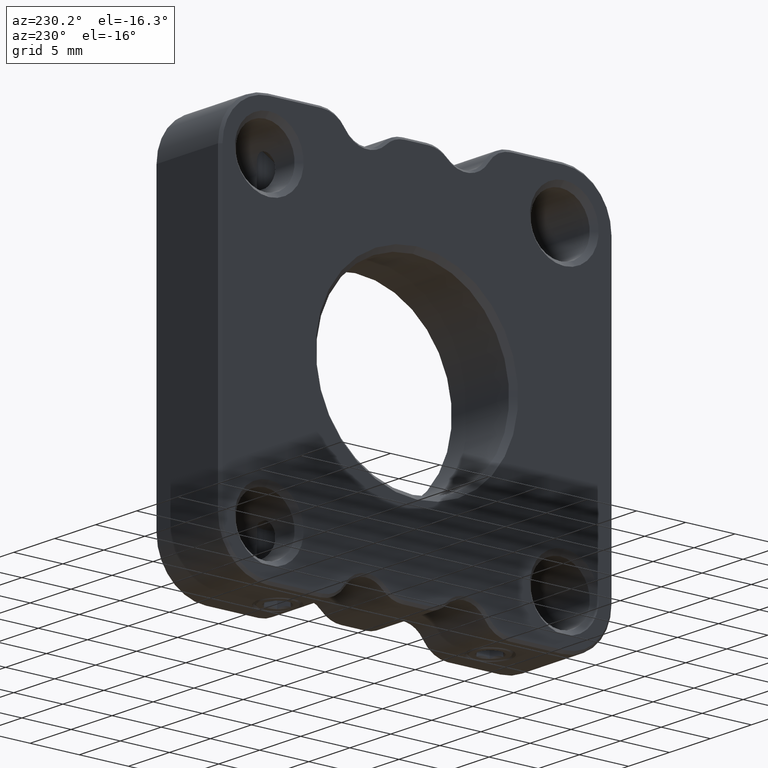
[diagram: clean part render]
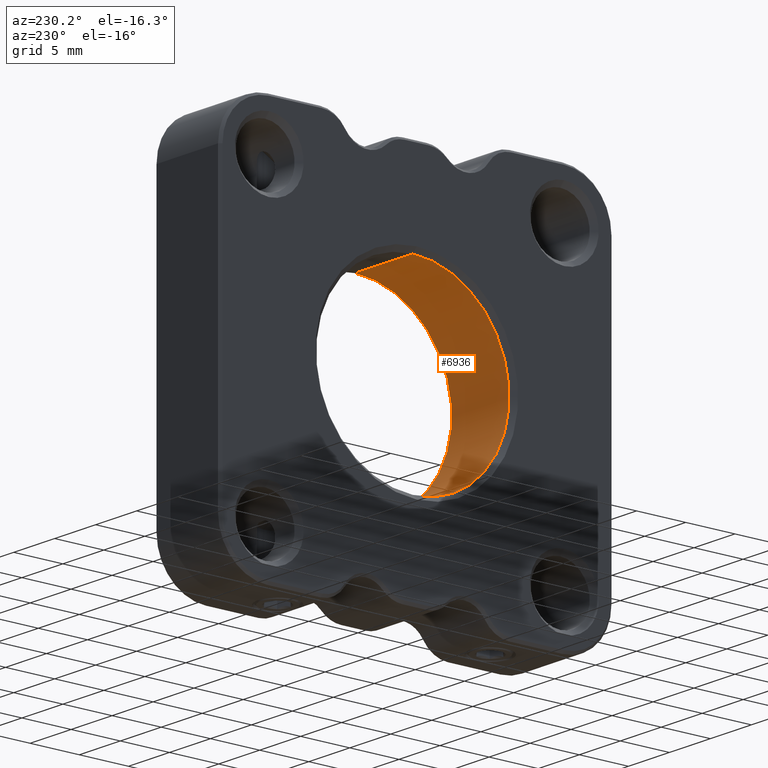
[diagram: same view with one face highlighted and labeled with its STEP entity id]
A machine part, auxiliary view. The second image highlights one B-rep face of the part: STEP entity #6936.
In plain terms, the highlighted cylindrical surface (partial cylindrical patch) has radius 9.807 mm, axis along (1, -0, -0).
Its self-contained STEP definition (entity closure, byte-faithful):
#32 = DIRECTION ( 'NONE',  ( 1.000000000000000000, -0.000000000000000000, -0.000000000000000000 ) ) ;
#97 = ORIENTED_EDGE ( 'NONE', *, *, #9271, .T. ) ;
#276 = VERTEX_POINT ( 'NONE', #6080 ) ;
#560 = EDGE_CURVE ( 'NONE', #4249, #8040, #7919, .T. ) ;
#1011 = EDGE_CURVE ( 'NONE', #276, #3826, #4308, .T. ) ;
#1663 = ORIENTED_EDGE ( 'NONE', *, *, #1753, .F. ) ;
#1753 = EDGE_CURVE ( 'NONE', #276, #8040, #3695, .T. ) ;
#2002 = ORIENTED_EDGE ( 'NONE', *, *, #1011, .T. ) ;
#2041 = EDGE_LOOP ( 'NONE', ( #2002, #97, #3394, #1663 ) ) ;
#2117 = CARTESIAN_POINT ( 'NONE',  ( -18.20960063692994524, 2.109301223409109749, 40.00000000000001421 ) ) ;
#2460 = CARTESIAN_POINT ( 'NONE',  ( -11.20960063692995412, 2.109301223409111081, 49.80700000000001637 ) ) ;
#2782 = CARTESIAN_POINT ( 'NONE',  ( -18.20960063692994524, 2.109301223409109749, 49.80700000000001637 ) ) ;
#2819 = DIRECTION ( 'NONE',  ( -1.000000000000000000, -0.000000000000000000, -0.000000000000000000 ) ) ;
#2999 = CARTESIAN_POINT ( 'NONE',  ( -11.20960063692995412, 2.109301223409109749, 40.00000000000001421 ) ) ;
#3097 = AXIS2_PLACEMENT_3D ( 'NONE', #4986, #32, #7240 ) ;
#3394 = ORIENTED_EDGE ( 'NONE', *, *, #560, .T. ) ;
#3426 = DIRECTION ( 'NONE',  ( 1.000000000000000000, -0.000000000000000000, -0.000000000000000000 ) ) ;
#3695 = LINE ( 'NONE', #6261, #4345 ) ;
#3730 = FACE_OUTER_BOUND ( 'NONE', #2041, .T. ) ;
#3826 = VERTEX_POINT ( 'NONE', #2782 ) ;
#4249 = VERTEX_POINT ( 'NONE', #2460 ) ;
#4283 = DIRECTION ( 'NONE',  ( 0.000000000000000000, 0.000000000000000000, -1.000000000000000000 ) ) ;
#4308 = CIRCLE ( 'NONE', #5870, 9.807000000000000384 ) ;
#4345 = VECTOR ( 'NONE', #3426, 1000.000000000000000 ) ;
#4682 = VECTOR ( 'NONE', #7618, 1000.000000000000000 ) ;
#4834 = AXIS2_PLACEMENT_3D ( 'NONE', #2999, #8711, #5110 ) ;
#4986 = CARTESIAN_POINT ( 'NONE',  ( -18.70960063692994879, 2.109301223409109749, 40.00000000000001421 ) ) ;
#5110 = DIRECTION ( 'NONE',  ( 0.000000000000000000, 0.000000000000000000, -1.000000000000000000 ) ) ;
#5219 = CYLINDRICAL_SURFACE ( 'NONE', #3097, 9.807000000000000384 ) ;
#5870 = AXIS2_PLACEMENT_3D ( 'NONE', #2117, #2819, #4283 ) ;
#6080 = CARTESIAN_POINT ( 'NONE',  ( -18.20960063692994524, 2.109301223409111081, 30.19300000000001560 ) ) ;
#6261 = CARTESIAN_POINT ( 'NONE',  ( -18.70960063692994879, 2.109301223409109749, 30.19300000000001560 ) ) ;
#6608 = LINE ( 'NONE', #6899, #4682 ) ;
#6653 = CARTESIAN_POINT ( 'NONE',  ( -11.20960063692995412, 2.109301223409109749, 30.19300000000001560 ) ) ;
#6899 = CARTESIAN_POINT ( 'NONE',  ( -18.70960063692994879, 2.109301223409111081, 49.80700000000001637 ) ) ;
#6936 = ADVANCED_FACE ( 'NONE', ( #3730 ), #5219, .F. ) ;
#7240 = DIRECTION ( 'NONE',  ( 0.000000000000000000, 0.000000000000000000, -1.000000000000000000 ) ) ;
#7618 = DIRECTION ( 'NONE',  ( 1.000000000000000000, -0.000000000000000000, -0.000000000000000000 ) ) ;
#7919 = CIRCLE ( 'NONE', #4834, 9.807000000000000384 ) ;
#8040 = VERTEX_POINT ( 'NONE', #6653 ) ;
#8711 = DIRECTION ( 'NONE',  ( 1.000000000000000000, 0.000000000000000000, 0.000000000000000000 ) ) ;
#9271 = EDGE_CURVE ( 'NONE', #3826, #4249, #6608, .T. ) ;